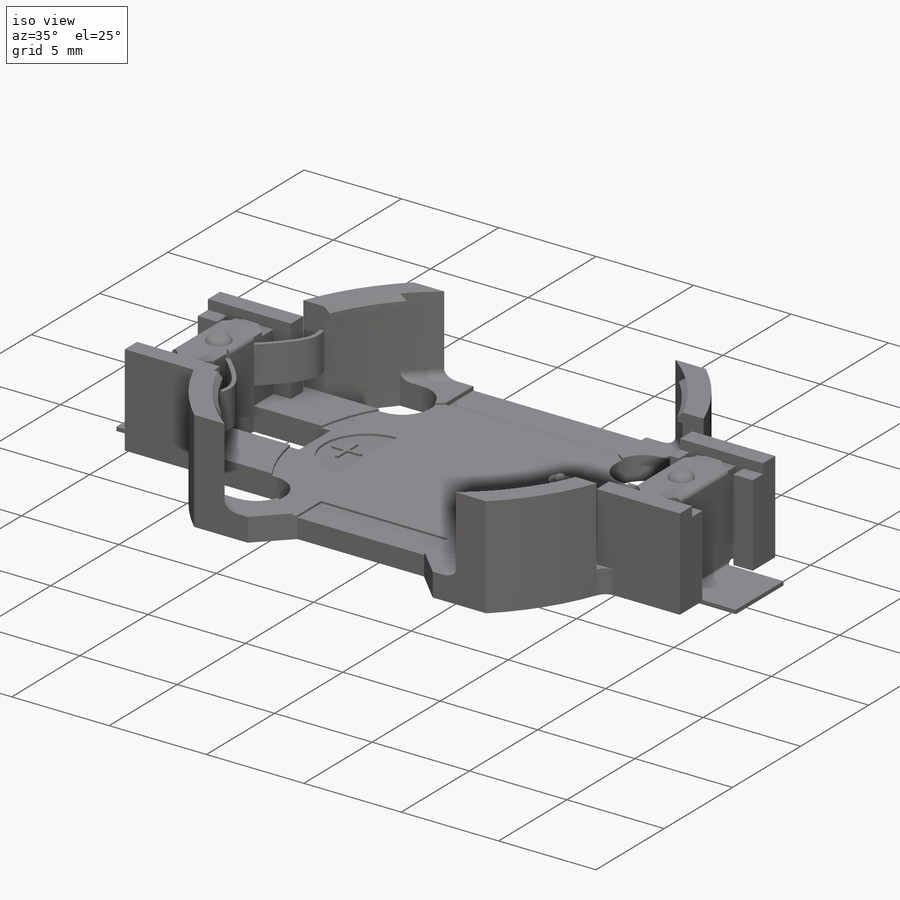
[diagram: iso view]
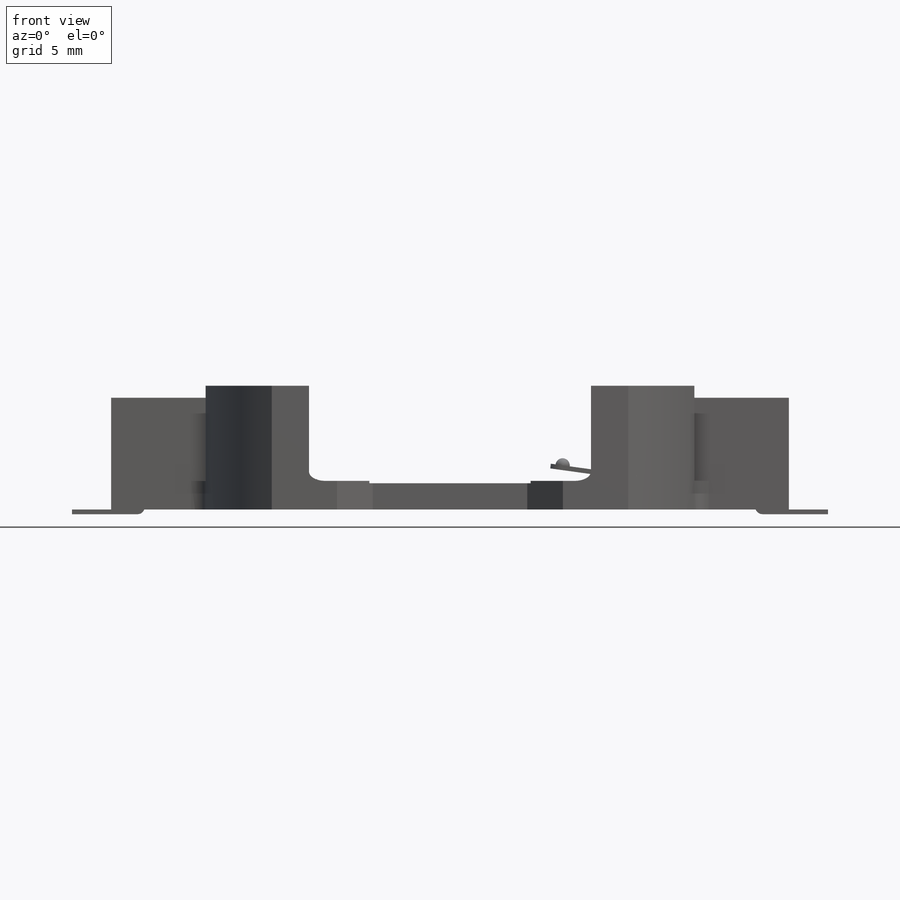
[diagram: front view]
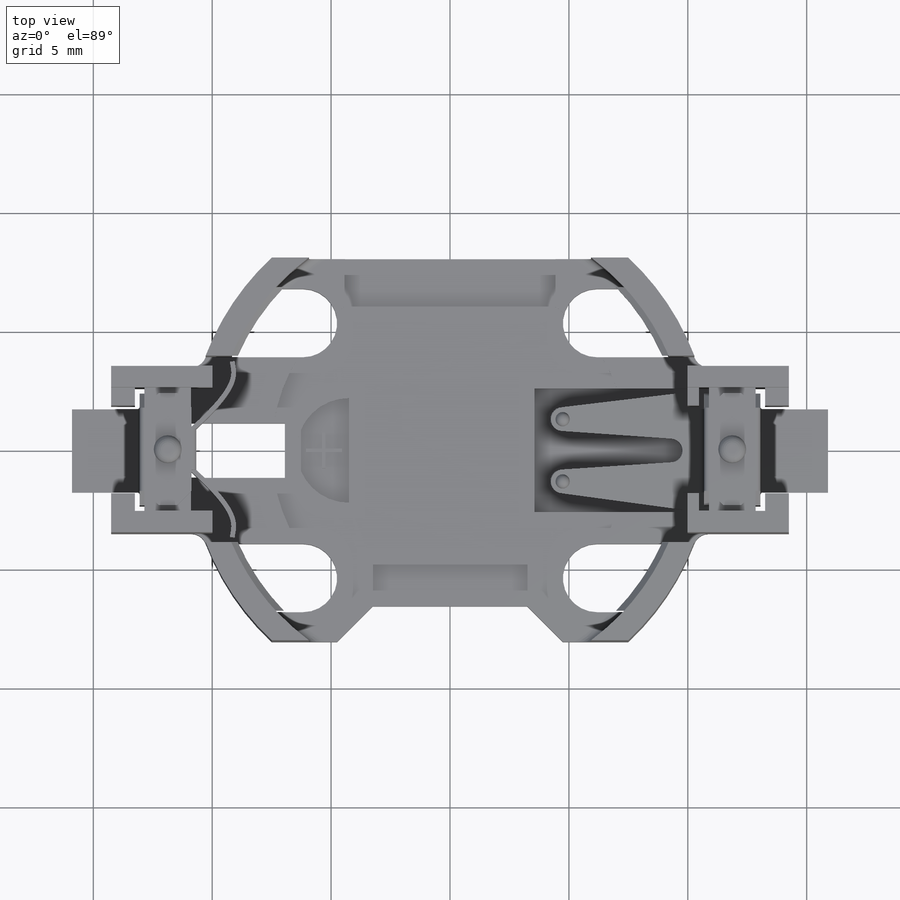
[diagram: top view]
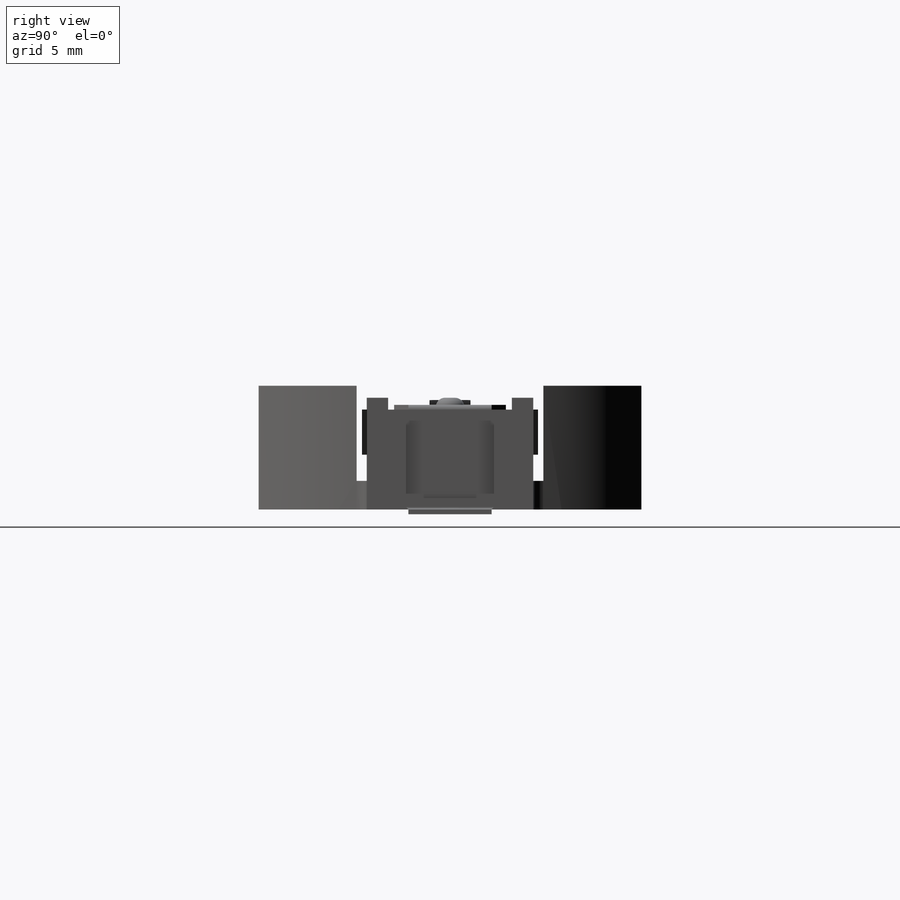
[diagram: right view]
SOLIDWORKS PART (.sldprt)
format: sldprt  version: not decoded by parser v0  size: 1,093,632 bytes
history: native  units: mm
features: sketch x26, extrude x11, cut_extrude x11, fillet x7, plane x2, material x1, chamfer x1 (+12 scaffold rows collapsed)
feature tree (71):
  scaffold x12  (default folders/planes/origin — collapsed)
  material  "Material <not specified>"
  sketch  "Sketch1"  dims[c1.D1=~11.423915mm c1.D5=22.0mm c2.D1=28.5mm c2.D2=7.0mm c2.D3=3.5mm c2.D4=14.25mm c2.D6=16.1mm c2.D7=8.05mm c3.D6=16.1mm c3.D8=~14.992998mm c4.D8=45.0deg c4.D9=6.5mm c4.D10=3.25mm c4.D11=1.5mm]
  extrude  "Extrude1"  Depth=5.2mm
  fillet  "Fillet1"  Radius=0.65mm
  plane  "Plane1"  Offset=1.2mm
  sketch  "Sketch2"  dims[D1=~6.854641mm]
  cut_extrude  "Cut-Extrude1"  Depth=0.5mm
  sketch  "Sketch3"  dims[D1=9.5mm]
  cut_extrude  "Cut-Extrude2"  [1 undecoded]
  chamfer  "Chamfer1"  Distance=0.25mm Angle=45deg
  fillet  "Fillet2"  Radius=0.4mm
  sketch  "Sketch4"  dims[D1=7.85mm D2=3.925mm D3=1.25mm D4=1.25mm]
  cut_extrude  "Cut-Extrude3"  Depth=0.5mm
  sketch  "Sketch5"  dims[D1=0.9mm D2=0.9mm D3=0.9mm D4=7.85mm]
  cut_extrude  "Cut-Extrude4"  [1 undecoded]
  sketch  "Sketch6"
  cut_extrude  "Cut-Extrude5"  [1 undecoded]
  sketch  "Sketch7"  dims[D1=~7.695523mm]
  cut_extrude  "Cut-Extrude6"  Depth=0.1mm
  sketch  "Sketch8"  dims[D1=1.5mm D2=1.5mm D3=0.75mm D4=0.15mm D5=0.15mm D6=0.075mm]
  cut_extrude  "Cut-Extrude7"  Depth=0.1mm
  sketch  "Sketch9"
  cut_extrude  "Cut-Extrude8"  Depth=0.5mm
  sketch  "Sketch10"  dims[c1.D1=1.0mm c1.D2=1.0mm c1.D3=1.0mm c1.D4=3.2mm c2.D2=3.7mm c2.D3=1.85mm c2.D4=0.4mm c2.D5=2.3mm c2.D6=1.15mm]
  cut_extrude  "Cut-Extrude9"  [1 undecoded]
  sketch  "Sketch11"
  cut_extrude  "Cut-Extrude10"  Depth=0.4mm
  sketch  "Sketch12"  dims[D1=~0.683509mm]
  extrude  "Extrude2"  Depth=0.5mm
  fillet  "Fillet3"  Radius=0.4mm
  sketch  "Sketch14"  dims[c1.D1=0.2mm c1.D2=1.65mm c2.D1=1.75mm c2.D2=1.75mm c2.D5=0.2mm c2.D6=0.5mm c2.D7=5.0mm]
  sketch  "Sketch16"
  extrude  "Extrude3"  [1 undecoded]
  sketch  "Sketch17"  dims[c1.D1=0.6mm c1.D2=0.6mm c1.D3=~0.778814mm c2.D3=45.0deg]
  extrude  "Extrude4"  Depth=0.2mm
  sketch  "Sketch18"  dims[D1=0.0mm]
  extrude  "Extrude5"  Depth=0.2mm
  sketch  "Sketch19"  dims[D1=0.0mm]
  extrude  "Extrude6"  Depth=0.2mm
  sketch  "Sketch20"
  extrude  "Extrude7"  Depth=0.2mm
  sketch  "Sketch21"  dims[D1=1.0mm D2=1.0mm]
  cut_extrude  "Cut-Extrude11"  Depth=0.2mm
  sketch  "Sketch22"  dims[D1=~0.248873mm]
  extrude  "Extrude8"  Depth=0.3mm
  fillet  "Fillet4"  Radius=0.3mm
  sketch  "Sketch23"  dims[c1.D1=~1.970324mm c2.D1=135.0deg]
  extrude  "Extrude9"  Depth=0.2mm
  sketch  "Sketch24"  dims[c1.D1=0.2mm c2.D1=1.75mm c2.D2=1.75mm c2.D5=0.2mm c2.D6=0.5mm c2.D7=5.0mm]
  sketch  "Sketch25"  dims[D1=1.1mm D5=0.2mm D6=0.5mm D7=5.0mm]
  sketch  "Sketch26"
  extrude  "Extrude10"  Depth=0.2mm
  sketch  "Sketch27"  dims[c1.D1=~1.273548mm c2.D1=45.0deg]
  extrude  "Extrude11"  Depth=0.2mm
  fillet  "Fillet5"  Radius=0.2mm
  fillet  "Fillet6"  Radius=0.1mm
  fillet  "Fillet7"  Radius=0.3mm NLT is Multimaterial=0mm NLT Maxwell Material Name=0mm
  plane  "Plane2"  Offset=0.2mm
  sketch  "Component_Outline"
decode coverage: 44 of 56 modeling features carry decoded parameters
note: ~ marks probable driven/reference dimensions
note: 5 parameter values undecoded
summary: no parameter record found for 5 features
note: suppression state not decoded; provenance and decode notes live in map.json
